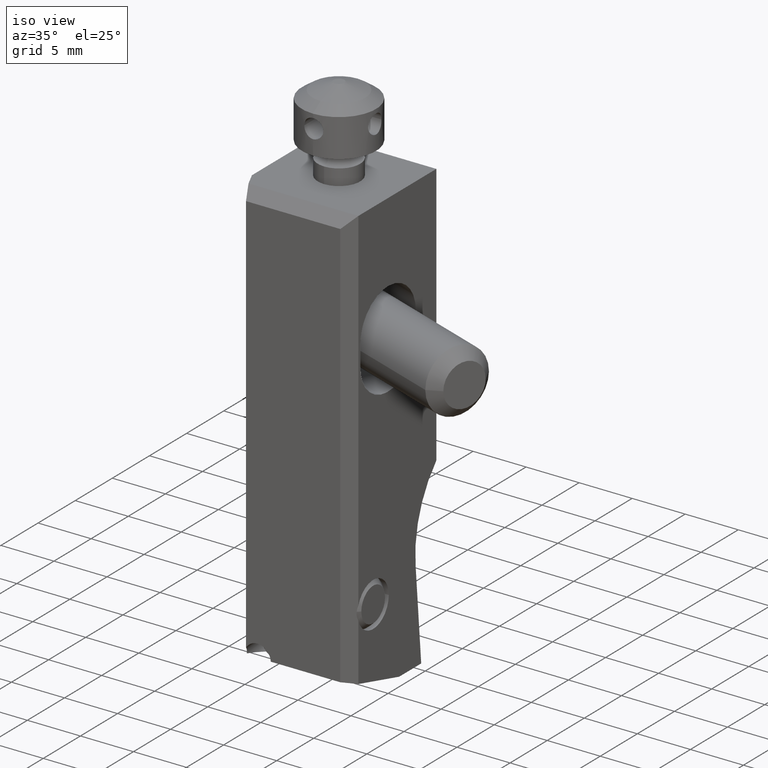
[diagram: clean part render]
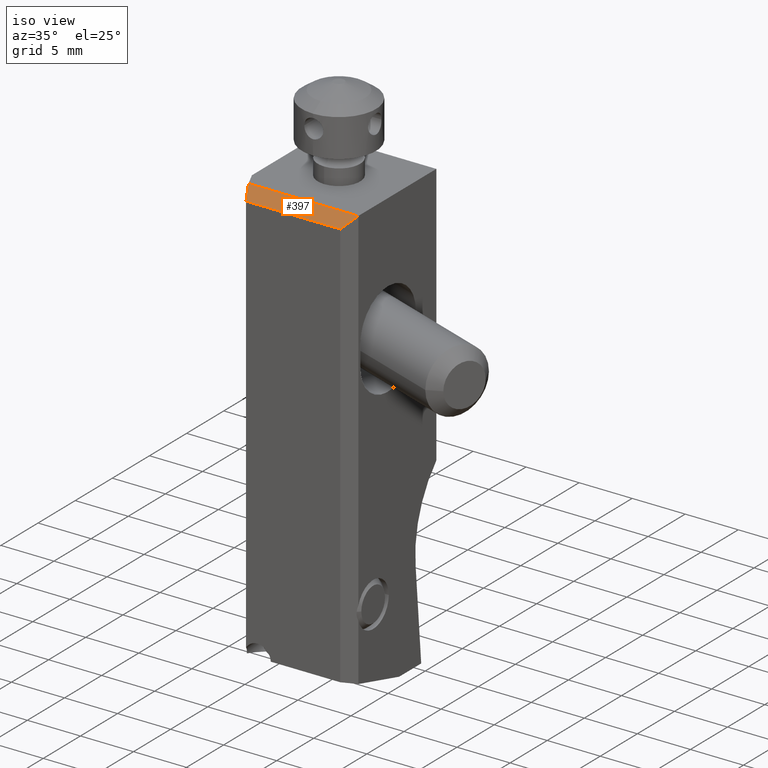
[diagram: same view with one face highlighted and labeled with its STEP entity id]
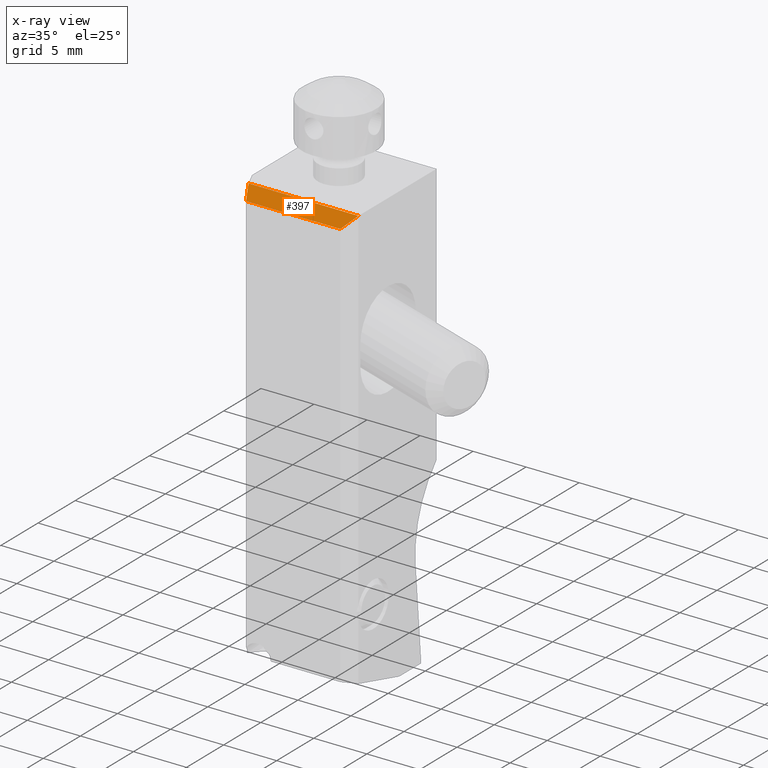
[diagram: x-ray of the same camera — body ghosted, the highlighted face saturated]
A machine part, iso view. The second image highlights one B-rep face of the part: STEP entity #397.
The next image is the same camera in x-ray: the body ghosted, the highlighted face saturated — about 0% of this face is hidden behind the body in this view.
In plain terms, the highlighted planar face has unit normal (0, 0.7071, -0.7071).
Its self-contained STEP definition (entity closure, byte-faithful):
#397=ADVANCED_FACE('',(#585),#526,.F.);
#526=PLANE('',#2788);
#585=FACE_OUTER_BOUND('',#724,.T.);
#724=EDGE_LOOP('',(#1123,#1124,#1125,#1126));
#1123=ORIENTED_EDGE('',*,*,#1888,.F.);
#1124=ORIENTED_EDGE('',*,*,#1914,.F.);
#1125=ORIENTED_EDGE('',*,*,#1854,.F.);
#1126=ORIENTED_EDGE('',*,*,#1868,.F.);
#1610=VERTEX_POINT('',#3838);
#1611=VERTEX_POINT('',#3840);
#1622=VERTEX_POINT('',#3867);
#1637=VERTEX_POINT('',#3905);
#1854=EDGE_CURVE('',#1610,#1611,#2233,.T.);
#1868=EDGE_CURVE('',#1622,#1610,#2242,.T.);
#1888=EDGE_CURVE('',#1637,#1622,#2253,.T.);
#1914=EDGE_CURVE('',#1611,#1637,#2269,.T.);
#2233=LINE('',#3839,#2412);
#2242=LINE('',#3868,#2421);
#2253=LINE('',#3907,#2432);
#2269=LINE('',#3961,#2448);
#2412=VECTOR('',#3041,1.);
#2421=VECTOR('',#3066,1.);
#2432=VECTOR('',#3101,1.);
#2448=VECTOR('',#3147,1.);
#2788=AXIS2_PLACEMENT_3D('',#4186,#3304,#3305);
#3041=DIRECTION('',(-1.,1.212348358259E-14,0.));
#3066=DIRECTION('',(-0.577350269189626,-0.577350269189626,-0.577350269189626));
#3101=DIRECTION('',(1.,-3.471555066583E-14,0.));
#3147=DIRECTION('',(-0.313145613015811,0.671542934237723,0.671542934237523));
#3304=DIRECTION('',(0.,0.707106781186547,-0.707106781186547));
#3305=DIRECTION('',(0.,-0.707106781186547,-0.707106781186547));
#3838=CARTESIAN_POINT('',(-1.,0.,-1.));
#3839=CARTESIAN_POINT('',(-1.,0.,-1.));
#3840=CARTESIAN_POINT('',(-9.889000221993,1.078026556911E-13,-1.));
#3867=CARTESIAN_POINT('',(0.,1.,0.));
#3868=CARTESIAN_POINT('',(0.,1.,0.));
#3905=CARTESIAN_POINT('',(-10.35530788015,1.,0.));
#3907=CARTESIAN_POINT('',(-10.35530788015,1.,0.));
#3961=CARTESIAN_POINT('',(-9.889000221993,1.078026556911E-13,-1.));
#4186=CARTESIAN_POINT('',(-5.177653940075,0.5,-0.5));